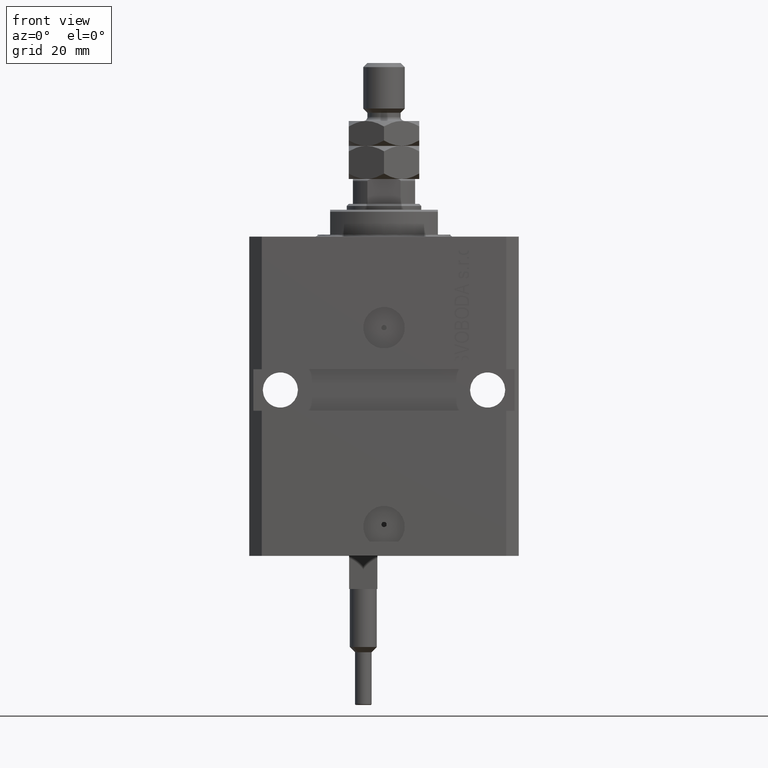
[diagram: clean part render]
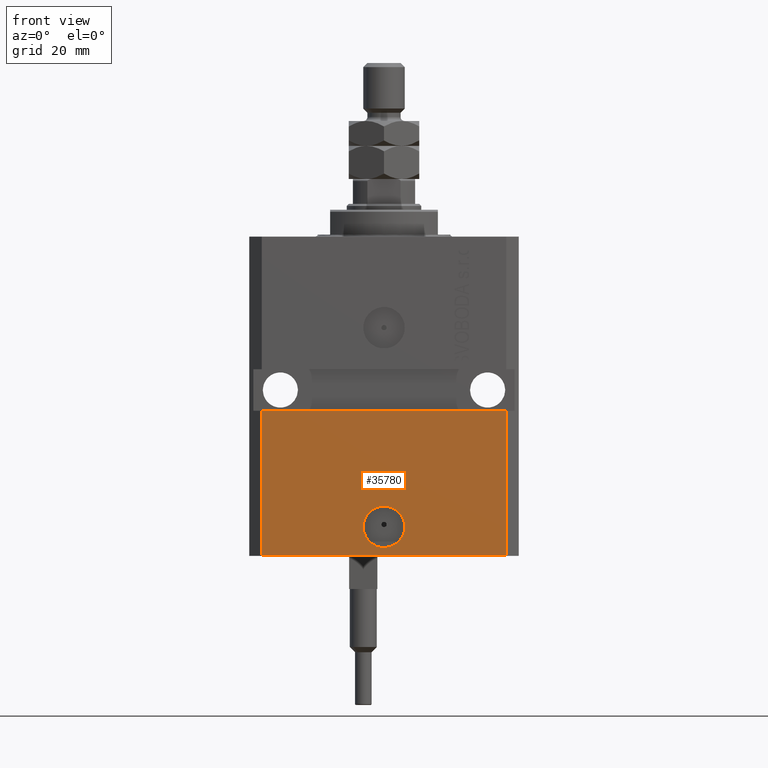
[diagram: same view with one face highlighted and labeled with its STEP entity id]
A machine part, front view. The second image highlights one B-rep face of the part: STEP entity #35780.
In plain terms, the highlighted planar face has unit normal (0, -1, 0).
Its self-contained STEP definition (entity closure, byte-faithful):
#958 = EDGE_CURVE ( 'NONE', #36551, #9986, #17304, .T. ) ;
#1626 = VERTEX_POINT ( 'NONE', #9706 ) ;
#1959 = DIRECTION ( 'NONE',  ( 1.176083712526788232E-16, -1.000000000000000000, 0.000000000000000000 ) ) ;
#2505 = CARTESIAN_POINT ( 'NONE',  ( -29.49999999999650413, -22.49999999999949907, -77.00000000000000000 ) ) ;
#2944 = VERTEX_POINT ( 'NONE', #8404 ) ;
#4213 = DIRECTION ( 'NONE',  ( 1.176083712526788232E-16, -1.000000000000000000, 0.000000000000000000 ) ) ;
#5055 = ORIENTED_EDGE ( 'NONE', *, *, #42608, .F. ) ;
#7223 = CARTESIAN_POINT ( 'NONE',  ( 5.000000000000007994, -22.49999999999949551, -69.99999999999998579 ) ) ;
#7910 = CARTESIAN_POINT ( 'NONE',  ( 29.49999999999650413, -22.49999999999949196, -77.00000000000000000 ) ) ;
#8275 = CARTESIAN_POINT ( 'NONE',  ( 2.646188353185214061E-15, -22.49999999999949551, -69.99999999999998579 ) ) ;
#8321 = LINE ( 'NONE', #23749, #38902 ) ;
#8404 = CARTESIAN_POINT ( 'NONE',  ( 29.49999999999650413, -22.49999999999949196, -77.00000000000000000 ) ) ;
#8770 = CARTESIAN_POINT ( 'NONE',  ( 29.49999999999650058, -22.49999999999949196, -41.99999999999998579 ) ) ;
#9706 = CARTESIAN_POINT ( 'NONE',  ( -29.49999999999650413, -22.49999999999949907, -41.99999999999999289 ) ) ;
#9986 = VERTEX_POINT ( 'NONE', #7223 ) ;
#11265 = DIRECTION ( 'NONE',  ( 1.000000000000000000, 1.067522139062765303E-16, 1.067522139062765303E-16 ) ) ;
#11479 = ORIENTED_EDGE ( 'NONE', *, *, #958, .F. ) ;
#12514 = EDGE_CURVE ( 'NONE', #2944, #18020, #15504, .T. ) ;
#15504 = LINE ( 'NONE', #7910, #46912 ) ;
#15693 = DIRECTION ( 'NONE',  ( 1.000000000000000000, 1.176083712526788232E-16, 0.000000000000000000 ) ) ;
#15980 = AXIS2_PLACEMENT_3D ( 'NONE', #18908, #4213, #38881 ) ;
#17304 = CIRCLE ( 'NONE', #18130, 5.000000000000005329 ) ;
#17394 = DIRECTION ( 'NONE',  ( 1.000000000000000000, 0.000000000000000000, 0.000000000000000000 ) ) ;
#18020 = VERTEX_POINT ( 'NONE', #8770 ) ;
#18130 = AXIS2_PLACEMENT_3D ( 'NONE', #8275, #46742, #31047 ) ;
#18778 = EDGE_CURVE ( 'NONE', #41507, #2944, #39463, .T. ) ;
#18865 = CARTESIAN_POINT ( 'NONE',  ( -32.49999999999650413, -22.49999999999949907, -41.99999999999999289 ) ) ;
#18908 = CARTESIAN_POINT ( 'NONE',  ( -29.49999999999650413, -22.49999999999949907, -77.00000000000000000 ) ) ;
#19979 = CARTESIAN_POINT ( 'NONE',  ( -29.49999999999650413, -22.49999999999949907, -77.00000000000000000 ) ) ;
#23486 = CIRCLE ( 'NONE', #27526, 5.000000000000005329 ) ;
#23749 = CARTESIAN_POINT ( 'NONE',  ( -29.49999999999650413, -22.49999999999949907, -77.00000000000000000 ) ) ;
#23850 = ORIENTED_EDGE ( 'NONE', *, *, #25280, .F. ) ;
#25280 = EDGE_CURVE ( 'NONE', #1626, #18020, #41404, .T. ) ;
#25664 = EDGE_LOOP ( 'NONE', ( #23850, #40855, #37038, #30153 ) ) ;
#27001 = PLANE ( 'NONE',  #15980 ) ;
#27244 = FACE_BOUND ( 'NONE', #33896, .T. ) ;
#27526 = AXIS2_PLACEMENT_3D ( 'NONE', #36622, #1959, #17394 ) ;
#28398 = VECTOR ( 'NONE', #15693, 1000.000000000000000 ) ;
#30153 = ORIENTED_EDGE ( 'NONE', *, *, #12514, .T. ) ;
#31047 = DIRECTION ( 'NONE',  ( 1.000000000000000000, 0.000000000000000000, 0.000000000000000000 ) ) ;
#31184 = DIRECTION ( 'NONE',  ( 0.000000000000000000, 0.000000000000000000, 1.000000000000000000 ) ) ;
#33896 = EDGE_LOOP ( 'NONE', ( #5055, #11479 ) ) ;
#35780 = ADVANCED_FACE ( 'NONE', ( #27244, #42694 ), #27001, .T. ) ;
#36551 = VERTEX_POINT ( 'NONE', #45742 ) ;
#36622 = CARTESIAN_POINT ( 'NONE',  ( 2.646188353185214061E-15, -22.49999999999949551, -69.99999999999998579 ) ) ;
#37038 = ORIENTED_EDGE ( 'NONE', *, *, #18778, .T. ) ;
#38881 = DIRECTION ( 'NONE',  ( 1.000000000000000000, 1.176083712526788232E-16, 0.000000000000000000 ) ) ;
#38902 = VECTOR ( 'NONE', #39180, 1000.000000000000000 ) ;
#39180 = DIRECTION ( 'NONE',  ( 0.000000000000000000, 0.000000000000000000, 1.000000000000000000 ) ) ;
#39463 = LINE ( 'NONE', #19979, #28398 ) ;
#40855 = ORIENTED_EDGE ( 'NONE', *, *, #47818, .F. ) ;
#41404 = LINE ( 'NONE', #18865, #45594 ) ;
#41507 = VERTEX_POINT ( 'NONE', #2505 ) ;
#42608 = EDGE_CURVE ( 'NONE', #9986, #36551, #23486, .T. ) ;
#42694 = FACE_OUTER_BOUND ( 'NONE', #25664, .T. ) ;
#45594 = VECTOR ( 'NONE', #11265, 1000.000000000000000 ) ;
#45742 = CARTESIAN_POINT ( 'NONE',  ( -5.000000000000002665, -22.49999999999949551, -69.99999999999998579 ) ) ;
#46742 = DIRECTION ( 'NONE',  ( 1.176083712526788232E-16, -1.000000000000000000, 0.000000000000000000 ) ) ;
#46912 = VECTOR ( 'NONE', #31184, 1000.000000000000000 ) ;
#47818 = EDGE_CURVE ( 'NONE', #41507, #1626, #8321, .T. ) ;